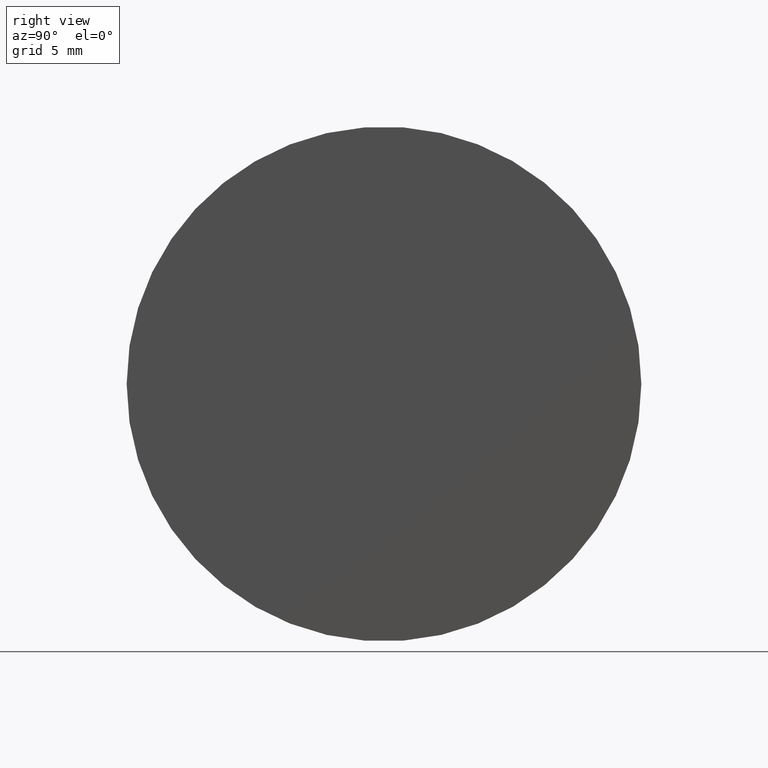
[diagram: clean part render]
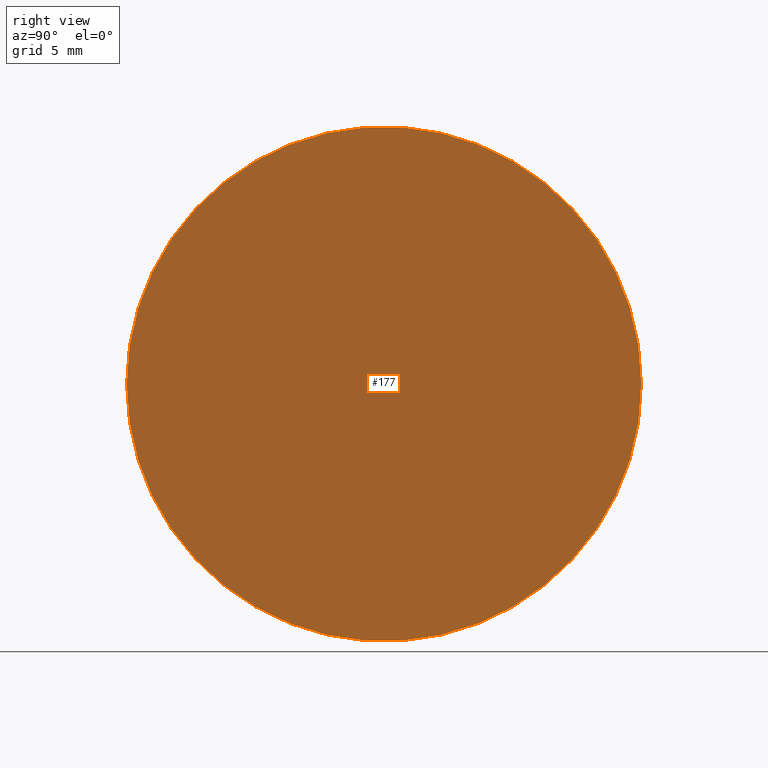
[diagram: same view with one face highlighted and labeled with its STEP entity id]
A machine part, right view. The second image highlights one B-rep face of the part: STEP entity #177.
In plain terms, the highlighted planar face has unit normal (1, 0, -0).
Its self-contained STEP definition (entity closure, byte-faithful):
#8 = VERTEX_POINT ( 'NONE', #63 ) ;
#19 = DIRECTION ( 'NONE',  ( -1.224646799147353207E-16, 1.000000000000000000, 0.000000000000000000 ) ) ;
#31 = CIRCLE ( 'NONE', #175, 15.00000000000000000 ) ;
#33 = CARTESIAN_POINT ( 'NONE',  ( 2.763896918518806728E-15, -15.00000000000000000, 1.836970198721029589E-15 ) ) ;
#35 = DIRECTION ( 'NONE',  ( -1.224646799147353207E-16, 1.000000000000000000, 0.000000000000000000 ) ) ;
#58 = AXIS2_PLACEMENT_3D ( 'NONE', #188, #127, #35 ) ;
#63 = CARTESIAN_POINT ( 'NONE',  ( -9.100434789232534355E-16, 15.00000000000000000, 0.000000000000000000 ) ) ;
#68 = DIRECTION ( 'NONE',  ( -1.224646799147353454E-16, 1.000000000000000000, 0.000000000000000000 ) ) ;
#72 = CIRCLE ( 'NONE', #58, 15.00000000000000000 ) ;
#89 = ORIENTED_EDGE ( 'NONE', *, *, #179, .T. ) ;
#110 = FACE_OUTER_BOUND ( 'NONE', #183, .T. ) ;
#111 = AXIS2_PLACEMENT_3D ( 'NONE', #140, #185, #68 ) ;
#126 = CARTESIAN_POINT ( 'NONE',  ( 9.269267197977765478E-16, 1.135157840444502874E-31, 0.000000000000000000 ) ) ;
#127 = DIRECTION ( 'NONE',  ( 1.000000000000000000, 1.224646799147353454E-16, -0.000000000000000000 ) ) ;
#128 = DIRECTION ( 'NONE',  ( 1.000000000000000000, 1.224646799147353454E-16, -0.000000000000000000 ) ) ;
#140 = CARTESIAN_POINT ( 'NONE',  ( -1.373506838822141611E-15, 15.00000000000000000, 0.000000000000000000 ) ) ;
#142 = PLANE ( 'NONE',  #111 ) ;
#163 = EDGE_CURVE ( 'NONE', #8, #195, #31, .T. ) ;
#165 = ORIENTED_EDGE ( 'NONE', *, *, #163, .T. ) ;
#175 = AXIS2_PLACEMENT_3D ( 'NONE', #126, #128, #19 ) ;
#177 = ADVANCED_FACE ( 'NONE', ( #110 ), #142, .T. ) ;
#179 = EDGE_CURVE ( 'NONE', #195, #8, #72, .T. ) ;
#183 = EDGE_LOOP ( 'NONE', ( #165, #89 ) ) ;
#185 = DIRECTION ( 'NONE',  ( 1.000000000000000000, 1.224646799147353454E-16, -0.000000000000000000 ) ) ;
#188 = CARTESIAN_POINT ( 'NONE',  ( 9.269267197977765478E-16, 1.135157840444502874E-31, 0.000000000000000000 ) ) ;
#195 = VERTEX_POINT ( 'NONE', #33 ) ;